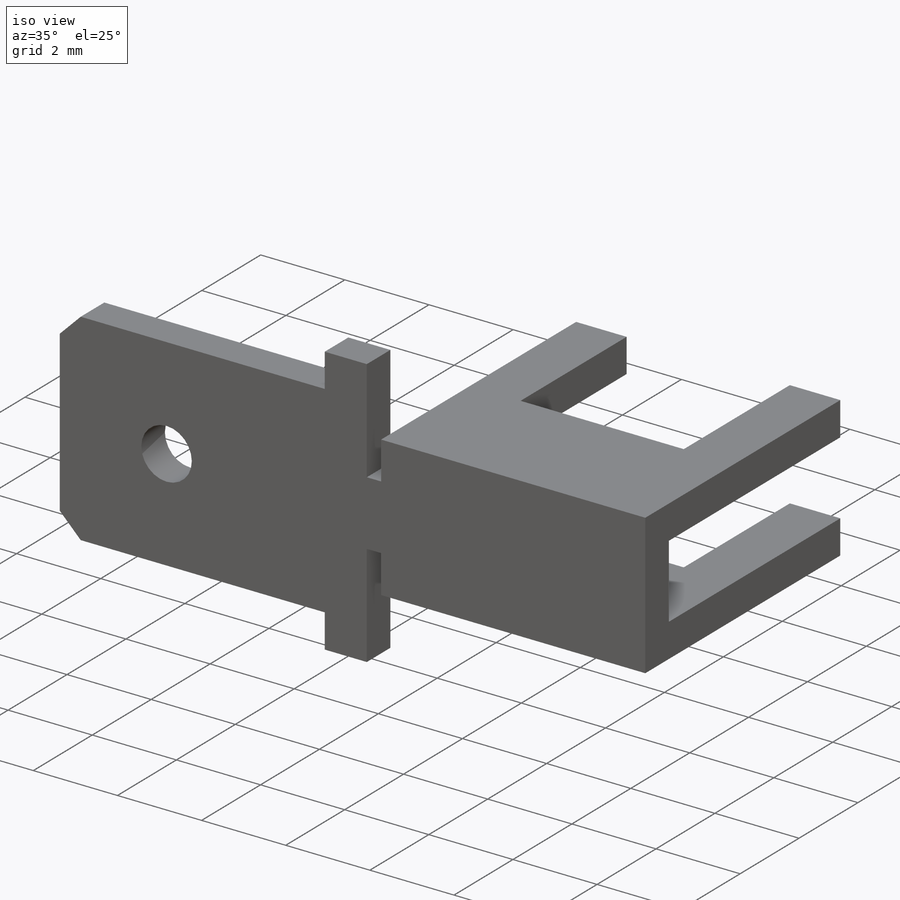
[diagram: iso view]
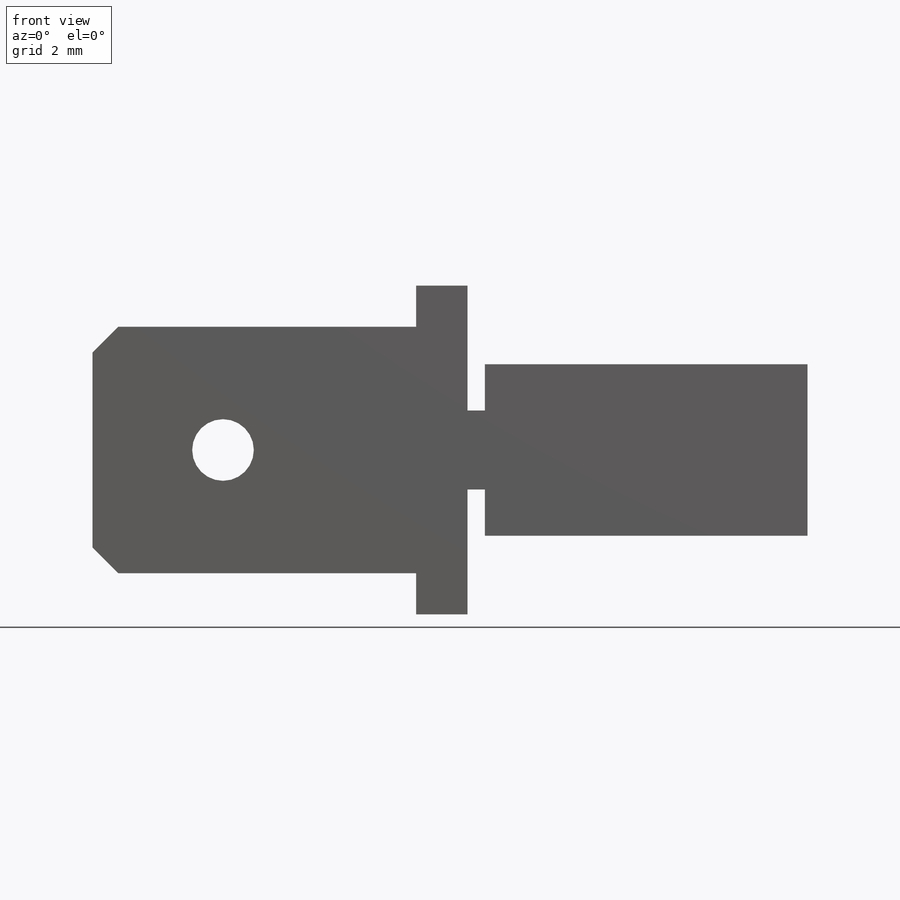
[diagram: front view]
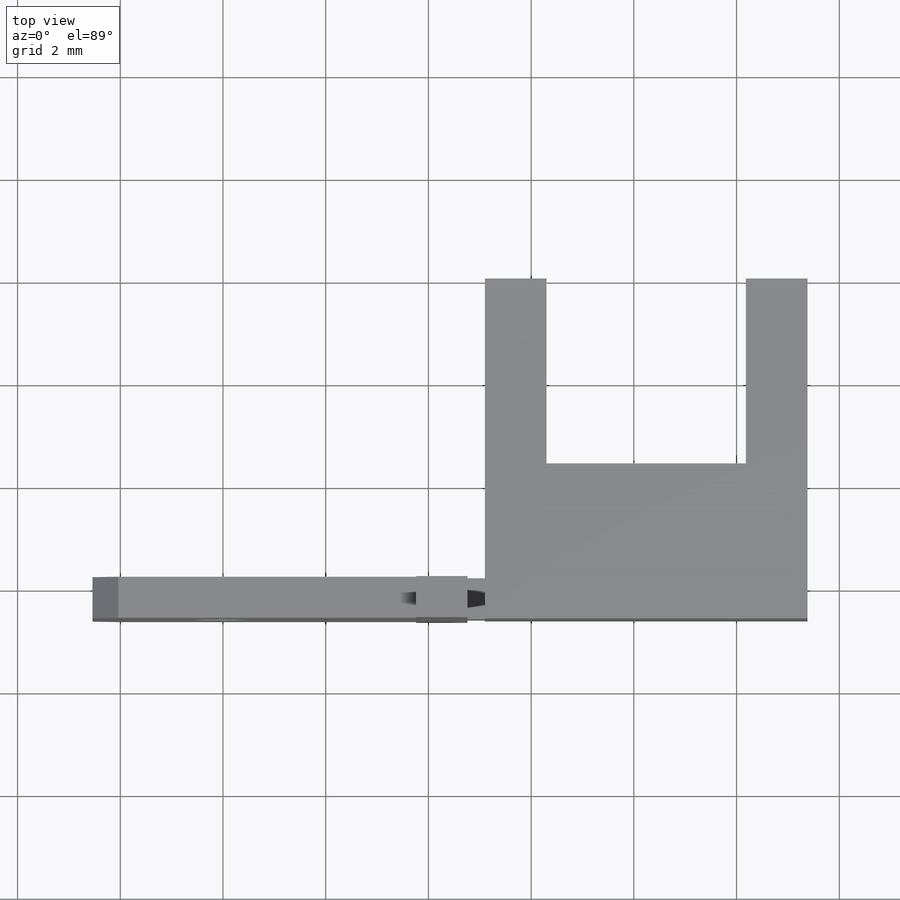
[diagram: top view]
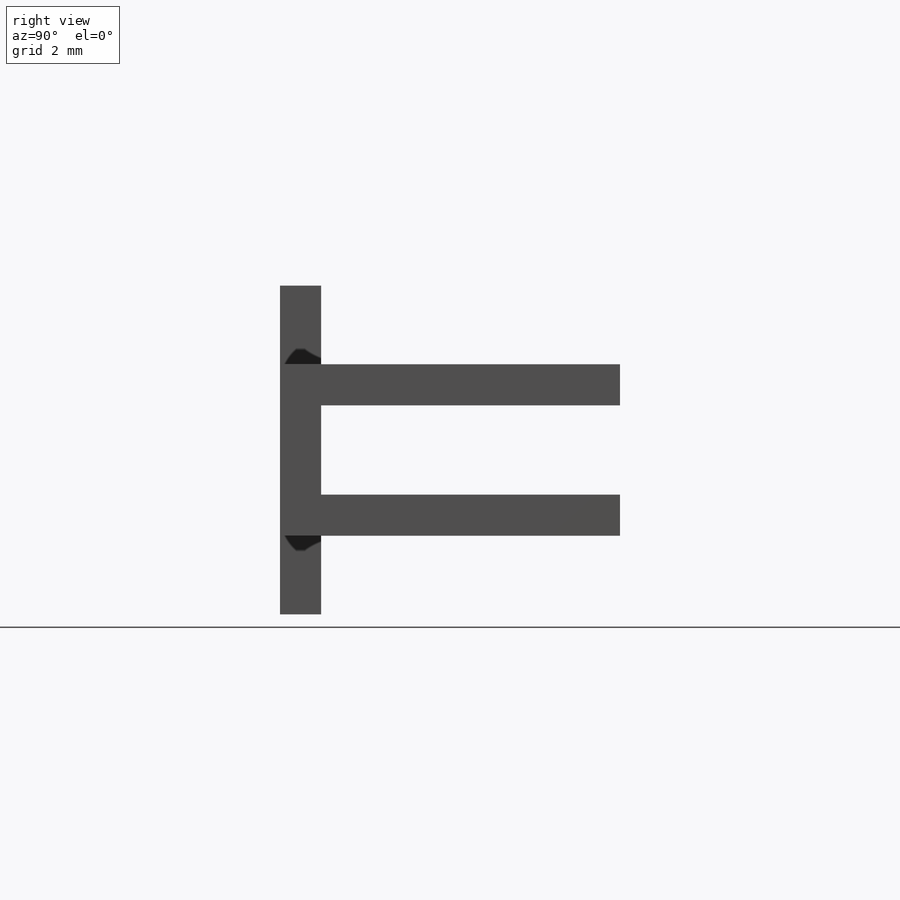
[diagram: right view]
SOLIDWORKS PART (.sldprt)
format: sldprt  version: not decoded by parser v0  size: 308,736 bytes
history: native  units: mm
features: sketch x9, cut_extrude x4, material x1, extrude x1, chamfer x1, mirror x1, sheet_metal_op x1 + 2 further entries (+12 scaffold rows collapsed; 1 parser-record rows omitted)
feature tree (33):
  scaffold x12  (default folders/planes/origin — collapsed)
  material  "Material <not specified>"
  sketch  "Sketch1"  dims[D2=1.2mm D1=4.8mm D3=2.54mm D4=6.3mm D5=6.4mm D6=7.62mm]
  extrude  "Boss-Extrude1"  Depth=6.62mm
  sketch  "Sketch2"  dims[c1.D1=0.8mm c1.D2=0.8mm c2.D1=3.34mm c2.D3=0.8mm]
  cut_extrude  "Cut-Extrude1"  [1 undecoded]
  sketch  "Sketch5"
  cut_extrude  "Cut-Extrude4"  Depth=6.62mm
  sketch  "Sketch4"  dims[D1=1.2mm D2=1.2mm D3=5.08mm D4=3.6mm]
  cut_extrude  "Cut-Extrude3"  [1 undecoded]
  chamfer  "Chamfer1"  Distance=0.5mm Angle=45deg
  sketch  "Sketch11"
  cut_extrude  "Cut-Extrude5"  Depth=0.9mm
  mirror  "Mirror1"  SharpBend2=0
  sketch  "Bend-Lines1"
  sketch  "Bounding-Box1"
  sheet_metal_op  "Sheet-Metal(13)"
  "Flat-Pattern(13)"
  sketch  "Bend-Lines2"
  sketch  "Bounding-Box2"
  parser-record x1  (decoder bookkeeping rows leaked as tree rows — omitted from the tree; the rows remain in map.json)
  "Flatten-<SharpBend2>1"
decode coverage: 8 of 17 modeling features carry decoded parameters; 2 rows unclassified (native names shown)
note: 2 parameter values undecoded
note: suppression state not decoded; provenance and decode notes live in map.json
